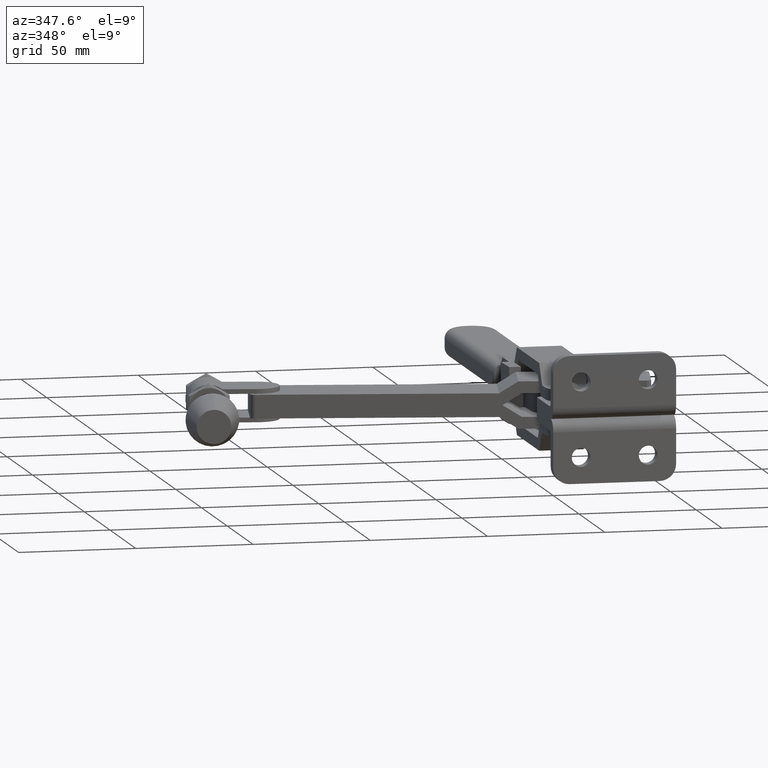
[diagram: clean part render]
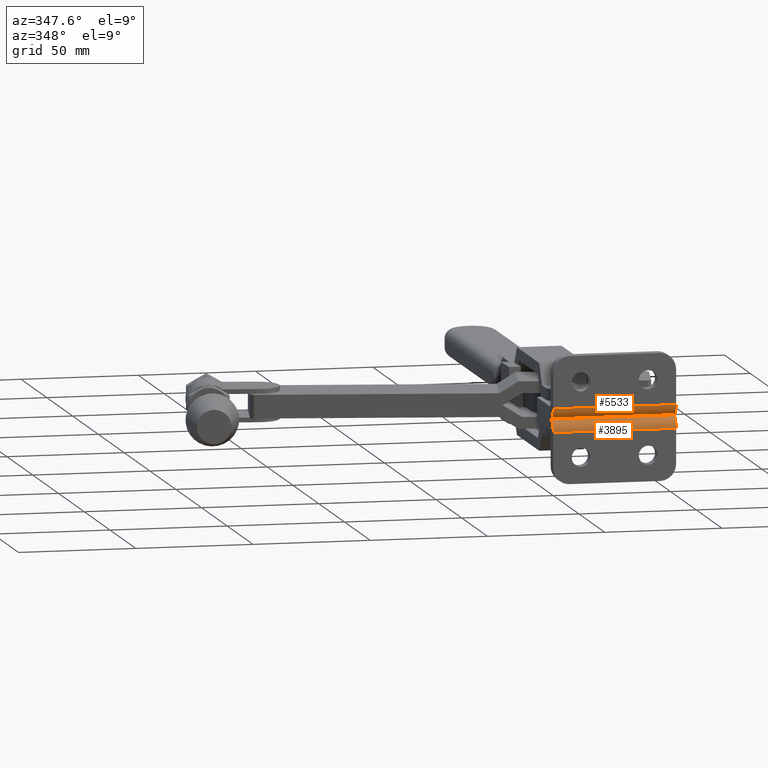
[diagram: same view with one multi-face feature highlighted, each face labeled with its STEP entity id]
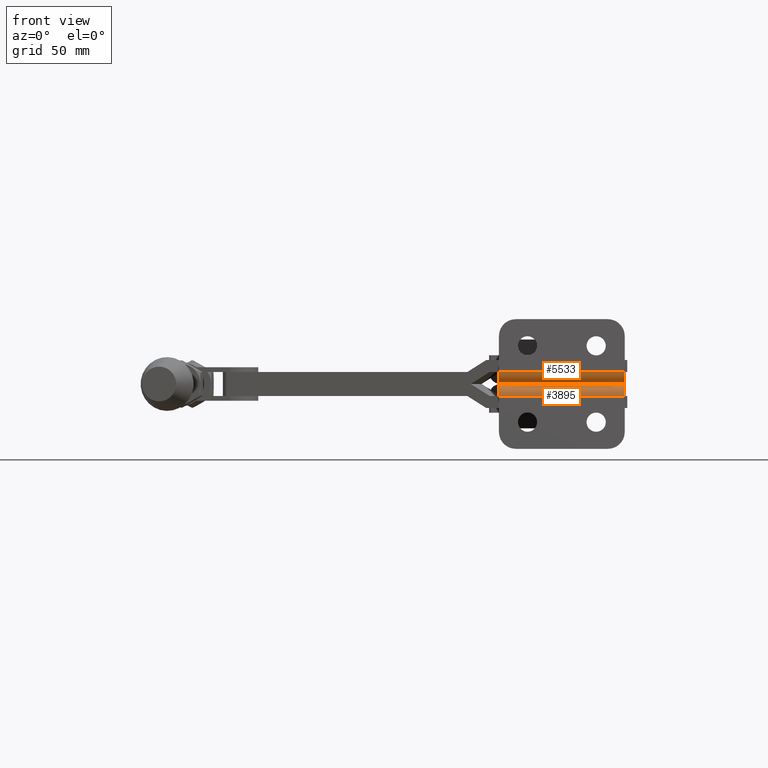
[diagram: same view with one multi-face feature highlighted, each face labeled with its STEP entity id]
A machine part, auxiliary view. The highlighted faces form ONE feature: a constant-radius fillet chain: 2 tangent blend faces with common blend radius 5 mm. The faces share edges in the B-rep.
A second angle (front view) of the same feature is appended — it is thin or edge-on in the first view.
Their STEP definitions:
[1] entity #5533 (Cylinder):
#460 = EDGE_LOOP ( 'NONE', ( #10249, #983, #1619, #4345 ) ) ;
#589 = CARTESIAN_POINT ( 'NONE',  ( 52.39999999999999900, 4.999999999999976900, 4.999999999999893400 ) ) ;
#962 = DIRECTION ( 'NONE',  ( 0.0000000000000000000, 0.0000000000000000000, -1.000000000000000000 ) ) ;
#983 = ORIENTED_EDGE ( 'NONE', *, *, #9049, .F. ) ;
#1005 = DIRECTION ( 'NONE',  ( -1.000000000000000000, -0.0000000000000000000, 0.0000000000000000000 ) ) ;
#1108 = LINE ( 'NONE', #6571, #9856 ) ;
#1282 = EDGE_CURVE ( 'NONE', #2295, #3784, #8428, .T. ) ;
#1409 = CARTESIAN_POINT ( 'NONE',  ( 0.0000000000000000000, 0.0000000000000000000, 4.999999999999893400 ) ) ;
#1516 = DIRECTION ( 'NONE',  ( 0.0000000000000000000, 0.0000000000000000000, -1.000000000000000000 ) ) ;
#1619 = ORIENTED_EDGE ( 'NONE', *, *, #3606, .F. ) ;
#2295 = VERTEX_POINT ( 'NONE', #1409 ) ;
#2398 = DIRECTION ( 'NONE',  ( -1.000000000000000000, -0.0000000000000000000, 0.0000000000000000000 ) ) ;
#2639 = DIRECTION ( 'NONE',  ( -1.000000000000000000, -0.0000000000000000000, 0.0000000000000000000 ) ) ;
#2747 = VECTOR ( 'NONE', #1005, 1000.000000000000000 ) ;
#3471 = DIRECTION ( 'NONE',  ( 1.000000000000000000, 0.0000000000000000000, 0.0000000000000000000 ) ) ;
#3606 = EDGE_CURVE ( 'NONE', #5736, #6704, #7293, .T. ) ;
#3784 = VERTEX_POINT ( 'NONE', #6052 ) ;
#4159 = CARTESIAN_POINT ( 'NONE',  ( 0.0000000000000000000, 4.999999999999976900, 4.999999999999893400 ) ) ;
#4345 = ORIENTED_EDGE ( 'NONE', *, *, #5525, .T. ) ;
#4946 = LINE ( 'NONE', #9250, #2747 ) ;
#5296 = CARTESIAN_POINT ( 'NONE',  ( 52.39999999999999900, 5.000000000000003600, 4.163336342344337000E-014 ) ) ;
#5525 = EDGE_CURVE ( 'NONE', #5736, #2295, #4946, .T. ) ;
#5533 = ADVANCED_FACE ( 'NONE', ( #9329 ), #6907, .T. ) ;
#5633 = CARTESIAN_POINT ( 'NONE',  ( 52.39999999999999900, 0.0000000000000000000, 4.999999999999893400 ) ) ;
#5736 = VERTEX_POINT ( 'NONE', #5633 ) ;
#6052 = CARTESIAN_POINT ( 'NONE',  ( 0.0000000000000000000, 5.000000000000003600, 4.163336342344337000E-014 ) ) ;
#6571 = CARTESIAN_POINT ( 'NONE',  ( 52.39999999999999900, 5.000000000000003600, -4.163336342344337000E-014 ) ) ;
#6673 = AXIS2_PLACEMENT_3D ( 'NONE', #6821, #2639, #8414 ) ;
#6704 = VERTEX_POINT ( 'NONE', #5296 ) ;
#6821 = CARTESIAN_POINT ( 'NONE',  ( 52.39999999999999900, 4.999999999999976900, 4.999999999999893400 ) ) ;
#6907 = CYLINDRICAL_SURFACE ( 'NONE', #6673, 4.999999999999935200 ) ;
#7293 = CIRCLE ( 'NONE', #7416, 4.999999999999935200 ) ;
#7416 = AXIS2_PLACEMENT_3D ( 'NONE', #589, #10617, #1516 ) ;
#8414 = DIRECTION ( 'NONE',  ( 0.0000000000000000000, 0.0000000000000000000, 1.000000000000000000 ) ) ;
#8428 = CIRCLE ( 'NONE', #8730, 4.999999999999935200 ) ;
#8730 = AXIS2_PLACEMENT_3D ( 'NONE', #4159, #3471, #962 ) ;
#9049 = EDGE_CURVE ( 'NONE', #6704, #3784, #1108, .T. ) ;
#9250 = CARTESIAN_POINT ( 'NONE',  ( 52.39999999999999900, 0.0000000000000000000, 4.999999999999893400 ) ) ;
#9329 = FACE_OUTER_BOUND ( 'NONE', #460, .T. ) ;
#9856 = VECTOR ( 'NONE', #2398, 1000.000000000000000 ) ;
#10249 = ORIENTED_EDGE ( 'NONE', *, *, #1282, .T. ) ;
#10617 = DIRECTION ( 'NONE',  ( 1.000000000000000000, 0.0000000000000000000, 0.0000000000000000000 ) ) ;
[2] entity #3895 (Cylinder):
#24 = EDGE_LOOP ( 'NONE', ( #2222, #1081, #155, #2611 ) ) ;
#155 = ORIENTED_EDGE ( 'NONE', *, *, #5173, .T. ) ;
#172 = DIRECTION ( 'NONE',  ( 0.0000000000000000000, 0.0000000000000000000, 1.000000000000000000 ) ) ;
#287 = CYLINDRICAL_SURFACE ( 'NONE', #7774, 4.999999999999935200 ) ;
#423 = CARTESIAN_POINT ( 'NONE',  ( 52.39999999999999900, 0.0000000000000000000, -4.999999999999893400 ) ) ;
#902 = DIRECTION ( 'NONE',  ( -1.000000000000000000, 0.0000000000000000000, 0.0000000000000000000 ) ) ;
#1081 = ORIENTED_EDGE ( 'NONE', *, *, #9983, .F. ) ;
#1108 = LINE ( 'NONE', #6571, #9856 ) ;
#1439 = VECTOR ( 'NONE', #5388, 1000.000000000000000 ) ;
#1686 = CARTESIAN_POINT ( 'NONE',  ( 0.0000000000000000000, 4.999999999999976900, -4.999999999999893400 ) ) ;
#1834 = CARTESIAN_POINT ( 'NONE',  ( 52.39999999999999900, 0.0000000000000000000, -4.999999999999893400 ) ) ;
#2198 = CARTESIAN_POINT ( 'NONE',  ( 52.39999999999999900, 4.999999999999976900, -4.999999999999893400 ) ) ;
#2222 = ORIENTED_EDGE ( 'NONE', *, *, #4608, .F. ) ;
#2398 = DIRECTION ( 'NONE',  ( -1.000000000000000000, -0.0000000000000000000, 0.0000000000000000000 ) ) ;
#2530 = CARTESIAN_POINT ( 'NONE',  ( 52.39999999999999900, 4.999999999999976900, -4.999999999999893400 ) ) ;
#2611 = ORIENTED_EDGE ( 'NONE', *, *, #9049, .T. ) ;
#2985 = AXIS2_PLACEMENT_3D ( 'NONE', #2198, #8016, #3059 ) ;
#3059 = DIRECTION ( 'NONE',  ( 0.0000000000000000000, 0.0000000000000000000, 1.000000000000000000 ) ) ;
#3784 = VERTEX_POINT ( 'NONE', #6052 ) ;
#3895 = ADVANCED_FACE ( 'NONE', ( #9335 ), #287, .T. ) ;
#4430 = VERTEX_POINT ( 'NONE', #8517 ) ;
#4608 = EDGE_CURVE ( 'NONE', #4430, #3784, #6807, .T. ) ;
#4957 = CIRCLE ( 'NONE', #2985, 4.999999999999935200 ) ;
#5173 = EDGE_CURVE ( 'NONE', #8219, #6704, #4957, .T. ) ;
#5296 = CARTESIAN_POINT ( 'NONE',  ( 52.39999999999999900, 5.000000000000003600, 4.163336342344337000E-014 ) ) ;
#5388 = DIRECTION ( 'NONE',  ( -1.000000000000000000, 0.0000000000000000000, 0.0000000000000000000 ) ) ;
#5412 = DIRECTION ( 'NONE',  ( 0.0000000000000000000, 0.0000000000000000000, -1.000000000000000000 ) ) ;
#5806 = AXIS2_PLACEMENT_3D ( 'NONE', #1686, #902, #172 ) ;
#6052 = CARTESIAN_POINT ( 'NONE',  ( 0.0000000000000000000, 5.000000000000003600, 4.163336342344337000E-014 ) ) ;
#6571 = CARTESIAN_POINT ( 'NONE',  ( 52.39999999999999900, 5.000000000000003600, -4.163336342344337000E-014 ) ) ;
#6704 = VERTEX_POINT ( 'NONE', #5296 ) ;
#6740 = DIRECTION ( 'NONE',  ( -1.000000000000000000, 0.0000000000000000000, 0.0000000000000000000 ) ) ;
#6807 = CIRCLE ( 'NONE', #5806, 4.999999999999935200 ) ;
#7774 = AXIS2_PLACEMENT_3D ( 'NONE', #2530, #6740, #5412 ) ;
#8016 = DIRECTION ( 'NONE',  ( -1.000000000000000000, 0.0000000000000000000, 0.0000000000000000000 ) ) ;
#8219 = VERTEX_POINT ( 'NONE', #1834 ) ;
#8517 = CARTESIAN_POINT ( 'NONE',  ( 0.0000000000000000000, 0.0000000000000000000, -4.999999999999893400 ) ) ;
#9049 = EDGE_CURVE ( 'NONE', #6704, #3784, #1108, .T. ) ;
#9335 = FACE_OUTER_BOUND ( 'NONE', #24, .T. ) ;
#9856 = VECTOR ( 'NONE', #2398, 1000.000000000000000 ) ;
#9983 = EDGE_CURVE ( 'NONE', #8219, #4430, #10205, .T. ) ;
#10205 = LINE ( 'NONE', #423, #1439 ) ;